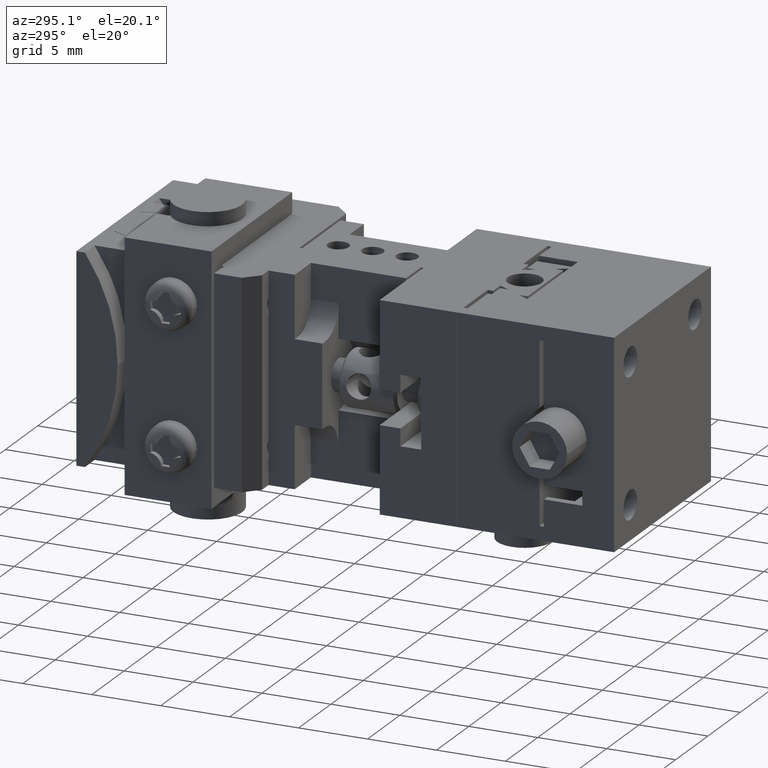
[diagram: clean part render]
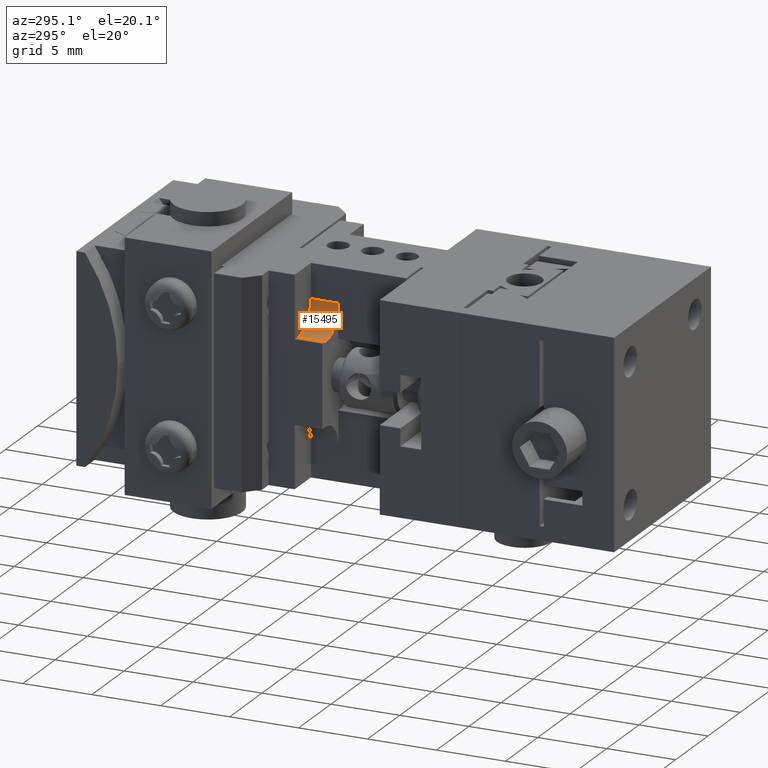
[diagram: same view with one face highlighted and labeled with its STEP entity id]
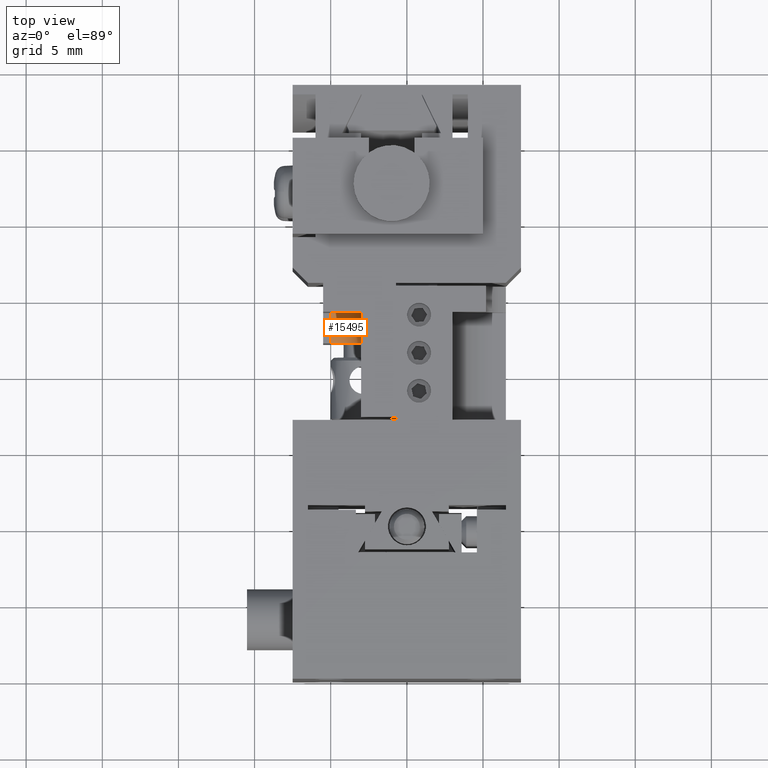
[diagram: same view with one face highlighted and labeled with its STEP entity id]
A machine part, auxiliary view. The second image highlights one B-rep face of the part: STEP entity #15495.
A second angle (top view) of the same face is appended — the face is thin or edge-on in the first view.
In plain terms, the highlighted cylindrical surface (edge-blend (fillet) strip) has radius 2 mm, axis along (-0, 1, -0).
Its self-contained STEP definition (entity closure, byte-faithful):
#1803 = CARTESIAN_POINT ( 'NONE',  ( -0.5000000000000000000, -3.000000000000000000, 0.5000000000000000000 ) ) ;
#2010 = CARTESIAN_POINT ( 'NONE',  ( -2.500000000000000000, -5.000000000000000000, 0.5000000000000000000 ) ) ;
#2255 = CIRCLE ( 'NONE', #25234, 2.000000000000000000 ) ;
#3100 = DIRECTION ( 'NONE',  ( -1.000000000000000000, 0.000000000000000000, 0.000000000000000000 ) ) ;
#4085 = AXIS2_PLACEMENT_3D ( 'NONE', #23607, #7501, #13374 ) ;
#4224 = VERTEX_POINT ( 'NONE', #20433 ) ;
#4695 = VERTEX_POINT ( 'NONE', #24608 ) ;
#5256 = EDGE_CURVE ( 'NONE', #17844, #4224, #8020, .T. ) ;
#6479 = CARTESIAN_POINT ( 'NONE',  ( -0.5000000000000000000, -5.000000000000000000, 2.500000000000000000 ) ) ;
#7501 = DIRECTION ( 'NONE',  ( 1.000000000000000000, 0.000000000000000000, 0.000000000000000000 ) ) ;
#8020 = LINE ( 'NONE', #23995, #11159 ) ;
#8293 = LINE ( 'NONE', #16265, #10766 ) ;
#8744 = VERTEX_POINT ( 'NONE', #1803 ) ;
#9751 = EDGE_CURVE ( 'NONE', #4695, #4224, #2255, .T. ) ;
#10766 = VECTOR ( 'NONE', #12708, 1000.000000000000000 ) ;
#11159 = VECTOR ( 'NONE', #16377, 1000.000000000000000 ) ;
#12459 = DIRECTION ( 'NONE',  ( 0.000000000000000000, 1.000000000000000000, 0.000000000000000000 ) ) ;
#12565 = ORIENTED_EDGE ( 'NONE', *, *, #13385, .T. ) ;
#12708 = DIRECTION ( 'NONE',  ( -1.000000000000000000, 0.000000000000000000, 0.000000000000000000 ) ) ;
#13374 = DIRECTION ( 'NONE',  ( 0.000000000000000000, 1.000000000000000000, 0.000000000000000000 ) ) ;
#13385 = EDGE_CURVE ( 'NONE', #8744, #17844, #15342, .T. ) ;
#13602 = EDGE_CURVE ( 'NONE', #8744, #4695, #8293, .T. ) ;
#15342 = CIRCLE ( 'NONE', #4085, 2.000000000000000000 ) ;
#15495 = ADVANCED_FACE ( 'NONE', ( #19319 ), #25221, .F. ) ;
#15804 = ORIENTED_EDGE ( 'NONE', *, *, #13602, .F. ) ;
#15857 = AXIS2_PLACEMENT_3D ( 'NONE', #17350, #3100, #21551 ) ;
#16265 = CARTESIAN_POINT ( 'NONE',  ( -0.5000000000000000000, -3.000000000000000000, 0.5000000000000000000 ) ) ;
#16377 = DIRECTION ( 'NONE',  ( -1.000000000000000000, 0.000000000000000000, 0.000000000000000000 ) ) ;
#17350 = CARTESIAN_POINT ( 'NONE',  ( 4.400000000000000355, -5.000000000000000000, 0.5000000000000000000 ) ) ;
#17586 = ORIENTED_EDGE ( 'NONE', *, *, #9751, .F. ) ;
#17844 = VERTEX_POINT ( 'NONE', #6479 ) ;
#18852 = ORIENTED_EDGE ( 'NONE', *, *, #5256, .T. ) ;
#19319 = FACE_OUTER_BOUND ( 'NONE', #24900, .T. ) ;
#20433 = CARTESIAN_POINT ( 'NONE',  ( -2.500000000000000000, -5.000000000000000000, 2.500000000000000000 ) ) ;
#21551 = DIRECTION ( 'NONE',  ( 0.000000000000000000, 1.000000000000000000, 0.000000000000000000 ) ) ;
#23607 = CARTESIAN_POINT ( 'NONE',  ( -0.5000000000000000000, -5.000000000000000000, 0.5000000000000000000 ) ) ;
#23995 = CARTESIAN_POINT ( 'NONE',  ( -0.5000000000000000000, -5.000000000000000000, 2.500000000000000000 ) ) ;
#24382 = DIRECTION ( 'NONE',  ( 1.000000000000000000, 0.000000000000000000, 0.000000000000000000 ) ) ;
#24608 = CARTESIAN_POINT ( 'NONE',  ( -2.500000000000000000, -3.000000000000000000, 0.5000000000000000000 ) ) ;
#24900 = EDGE_LOOP ( 'NONE', ( #12565, #18852, #17586, #15804 ) ) ;
#25221 = CYLINDRICAL_SURFACE ( 'NONE', #15857, 2.000000000000000000 ) ;
#25234 = AXIS2_PLACEMENT_3D ( 'NONE', #2010, #24382, #12459 ) ;